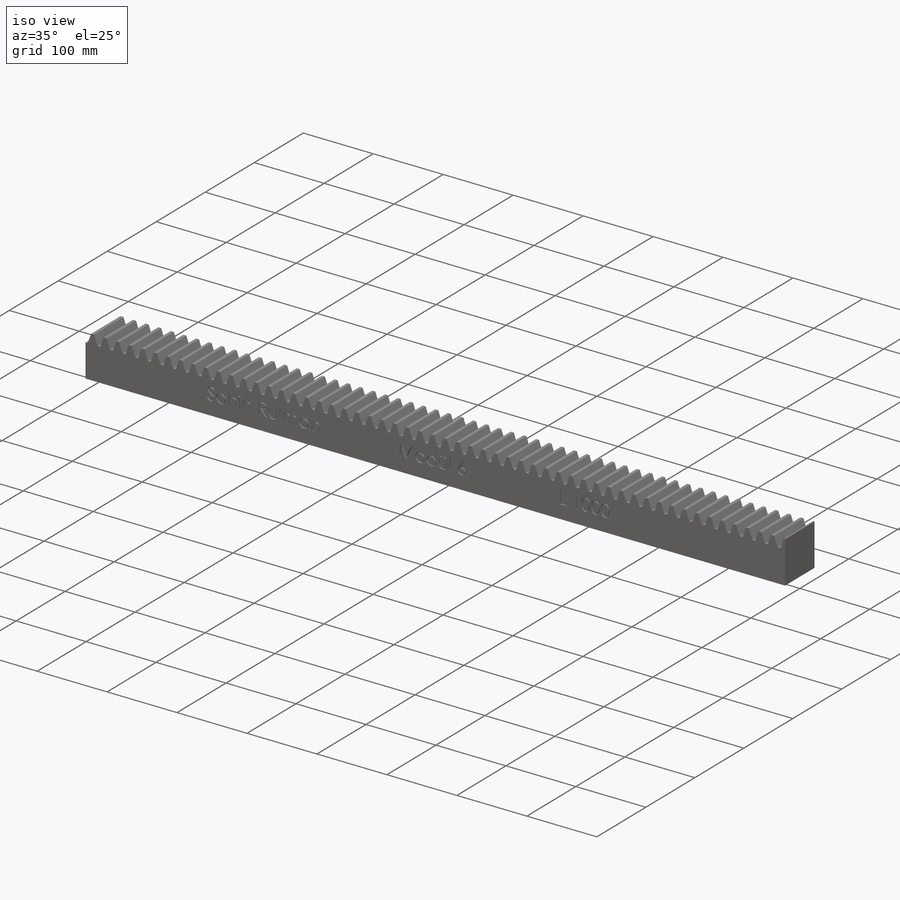
[diagram: iso view]
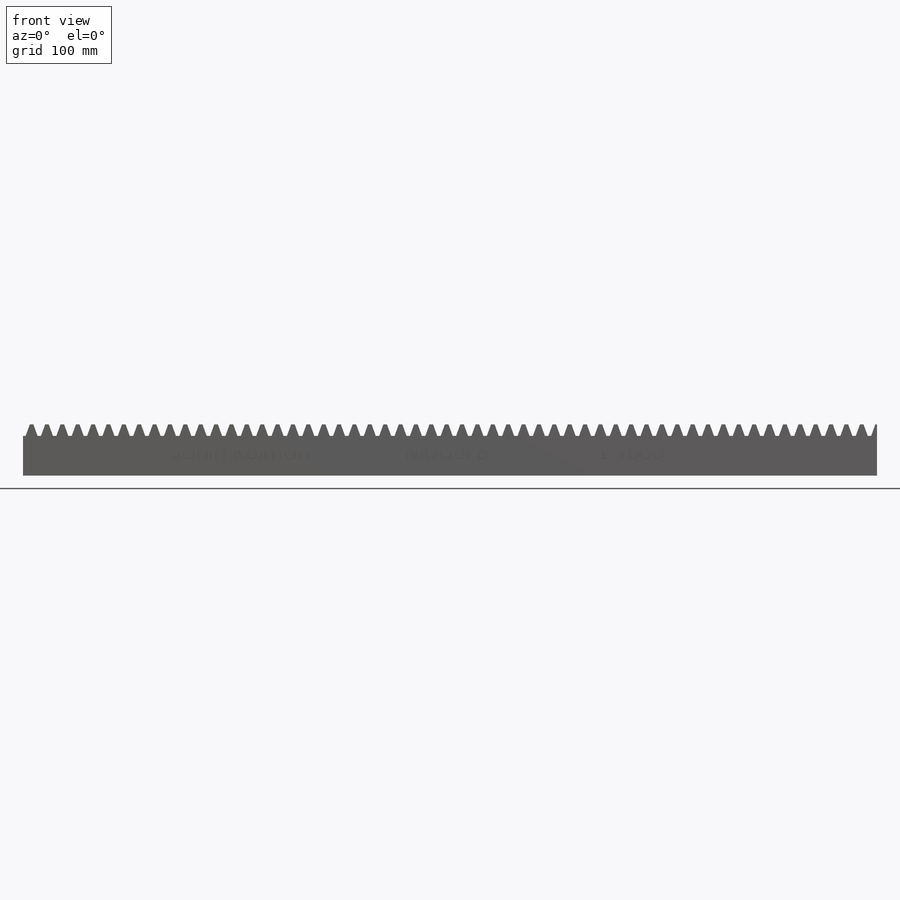
[diagram: front view]
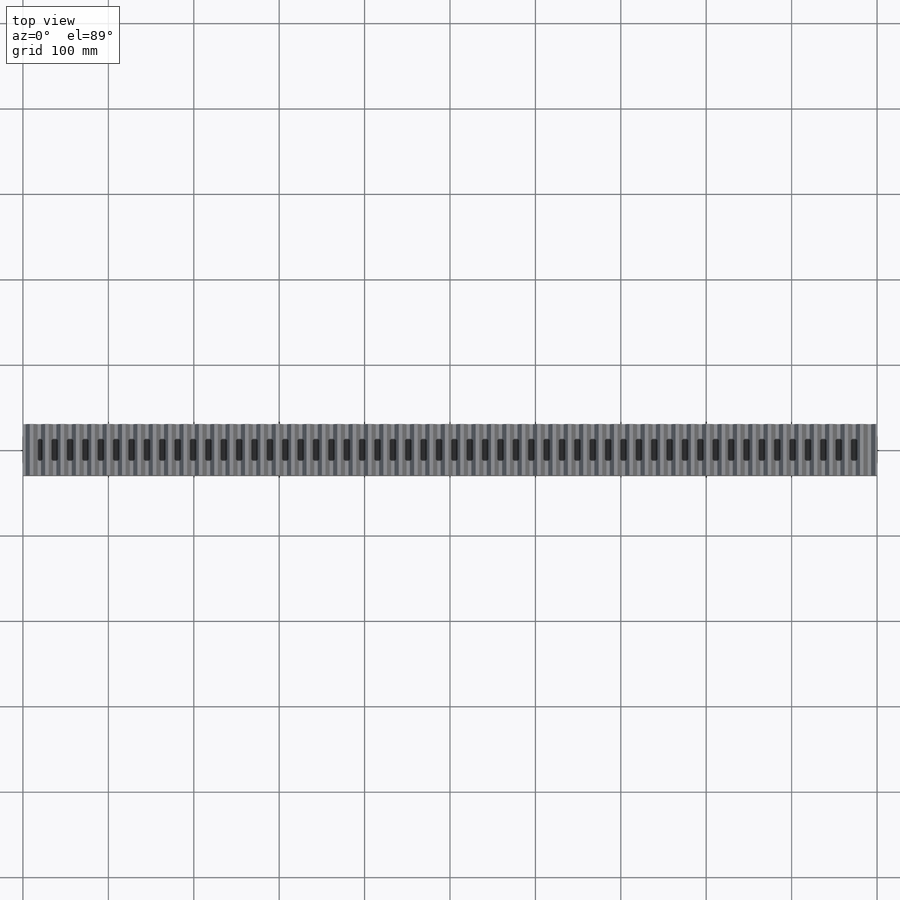
[diagram: top view]
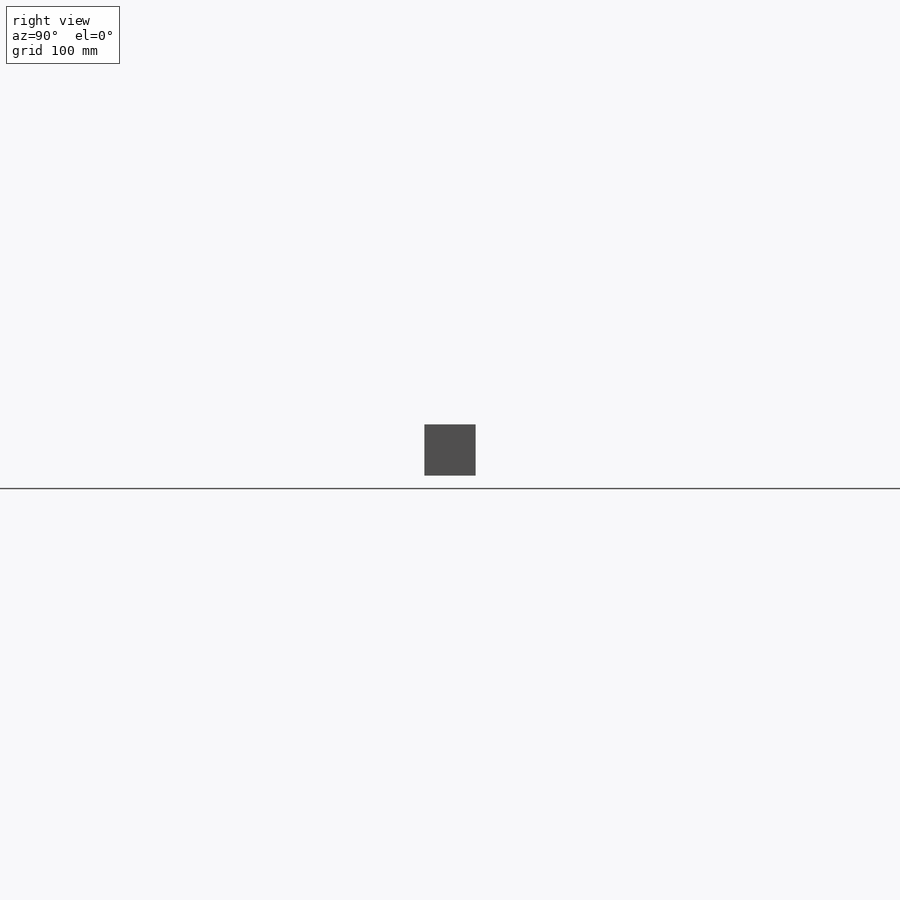
[diagram: right view]
SOLIDWORKS PART (.sldprt)
format: sldprt  version: not decoded by parser v0  size: 663,040 bytes
history: native  units: mm
features: sketch x3, cut_extrude x2, material x1, extrude x1, pattern_linear x1 (+11 scaffold rows collapsed)
feature tree (19):
  scaffold x11  (default folders/planes/origin — collapsed)
  material  "Material <not specified>"
  sketch  "Sketch1"  dims[D1=60.0mm D2=60.0mm]
  extrude  "Boss-Extrude1"  Depth=1000mm
  sketch  "Sketch2"  dims[c1.D1=2.0mm c1.D2=~24.340703mm c2.D2=20.0deg c2.D3=~24.340703mm c3.D3=20.0deg c3.D4=3.965mm c3.D5=13.5mm]
  cut_extrude  "Cut-Extrude1"  Depth=1000mm
  pattern_linear  "LPattern1"  Count1=3 Count2=1 Spacing1=18mm Spacing2=10mm
  sketch  "Sketch3"
  cut_extrude  "Cut-Extrude2"  Depth=2mm
decode coverage: 6 of 7 modeling features carry decoded parameters
note: ~ marks probable driven/reference dimensions
note: suppression state not decoded; provenance and decode notes live in map.json
